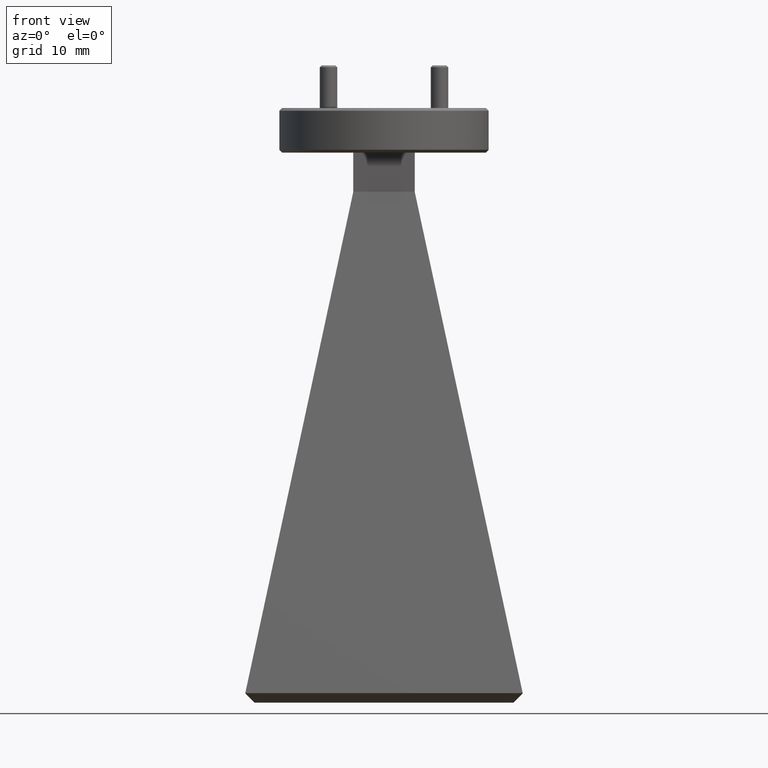
[diagram: clean part render]
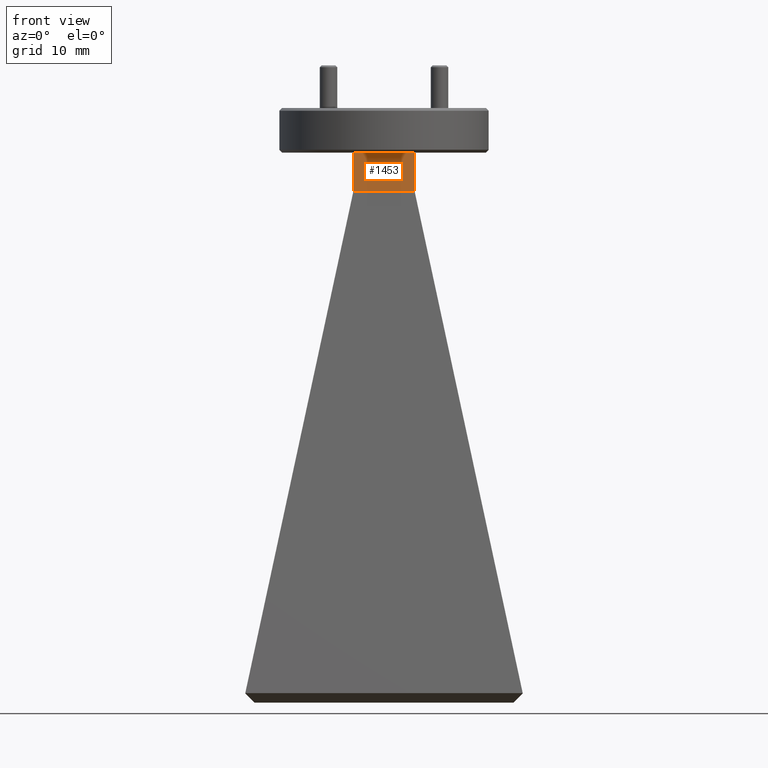
[diagram: same view with one face highlighted and labeled with its STEP entity id]
A machine part, front view. The second image highlights one B-rep face of the part: STEP entity #1453.
In plain terms, the highlighted planar face has unit normal (0, 1, 0).
Its self-contained STEP definition (entity closure, byte-faithful):
#1 = DIRECTION ( 'NONE',  ( 0.000000000000000000, -0.000000000000000000, 1.000000000000000000 ) ) ;
#13 = ORIENTED_EDGE ( 'NONE', *, *, #935, .F. ) ;
#19 = PLANE ( 'NONE',  #1476 ) ;
#144 = CARTESIAN_POINT ( 'NONE',  ( 0.1100000000000000006, -0.08499999999999999223, -0.2999999999999999889 ) ) ;
#251 = ORIENTED_EDGE ( 'NONE', *, *, #2040, .F. ) ;
#307 = DIRECTION ( 'NONE',  ( -0.000000000000000000, -0.000000000000000000, 1.000000000000000000 ) ) ;
#391 = FACE_OUTER_BOUND ( 'NONE', #1732, .T. ) ;
#475 = LINE ( 'NONE', #634, #884 ) ;
#622 = CARTESIAN_POINT ( 'NONE',  ( 0.1100000000000000006, -0.08499999999999999223, -0.1600000000000000033 ) ) ;
#634 = CARTESIAN_POINT ( 'NONE',  ( 4.067794619213686540E-18, -0.08499999999999995060, -0.3000000000000000999 ) ) ;
#763 = CARTESIAN_POINT ( 'NONE',  ( 0.1100000000000000006, -0.08499999999999999223, -0.1600000000000000033 ) ) ;
#796 = VECTOR ( 'NONE', #1990, 39.37007874015748143 ) ;
#817 = CARTESIAN_POINT ( 'NONE',  ( 0.1100000000000000006, -0.08499999999999999223, -0.2999999999999999889 ) ) ;
#884 = VECTOR ( 'NONE', #1450, 39.37007874015748143 ) ;
#935 = EDGE_CURVE ( 'NONE', #2221, #2592, #475, .T. ) ;
#1015 = VECTOR ( 'NONE', #307, 39.37007874015748143 ) ;
#1108 = EDGE_CURVE ( 'NONE', #2221, #2552, #2101, .T. ) ;
#1215 = ORIENTED_EDGE ( 'NONE', *, *, #1108, .T. ) ;
#1273 = LINE ( 'NONE', #2497, #1015 ) ;
#1294 = CARTESIAN_POINT ( 'NONE',  ( -0.1100000000000000006, -0.08499999999999999223, -0.1600000000000000033 ) ) ;
#1322 = VERTEX_POINT ( 'NONE', #1294 ) ;
#1394 = CARTESIAN_POINT ( 'NONE',  ( -0.1100000000000000561, -0.08499999999999997835, -0.3000000000000000444 ) ) ;
#1429 = EDGE_CURVE ( 'NONE', #2552, #1322, #2582, .T. ) ;
#1450 = DIRECTION ( 'NONE',  ( -1.000000000000000000, -1.311288203636348644E-16, 2.359385037231755538E-17 ) ) ;
#1453 = ADVANCED_FACE ( 'NONE', ( #391 ), #19, .F. ) ;
#1474 = CARTESIAN_POINT ( 'NONE',  ( 0.1099999999999999867, -0.08499999999999997835, -0.3000000000000000999 ) ) ;
#1476 = AXIS2_PLACEMENT_3D ( 'NONE', #817, #1805, #1 ) ;
#1732 = EDGE_LOOP ( 'NONE', ( #1743, #251, #13, #1215 ) ) ;
#1743 = ORIENTED_EDGE ( 'NONE', *, *, #1429, .T. ) ;
#1805 = DIRECTION ( 'NONE',  ( 0.000000000000000000, 1.000000000000000000, 0.000000000000000000 ) ) ;
#1975 = VECTOR ( 'NONE', #2547, 39.37007874015748143 ) ;
#1990 = DIRECTION ( 'NONE',  ( -1.000000000000000000, 0.000000000000000000, 0.000000000000000000 ) ) ;
#2040 = EDGE_CURVE ( 'NONE', #2592, #1322, #1273, .T. ) ;
#2101 = LINE ( 'NONE', #144, #1975 ) ;
#2221 = VERTEX_POINT ( 'NONE', #1474 ) ;
#2497 = CARTESIAN_POINT ( 'NONE',  ( -0.1100000000000000006, -0.08499999999999999223, -0.2999999999999999889 ) ) ;
#2547 = DIRECTION ( 'NONE',  ( -0.000000000000000000, -0.000000000000000000, 1.000000000000000000 ) ) ;
#2552 = VERTEX_POINT ( 'NONE', #622 ) ;
#2582 = LINE ( 'NONE', #763, #796 ) ;
#2592 = VERTEX_POINT ( 'NONE', #1394 ) ;